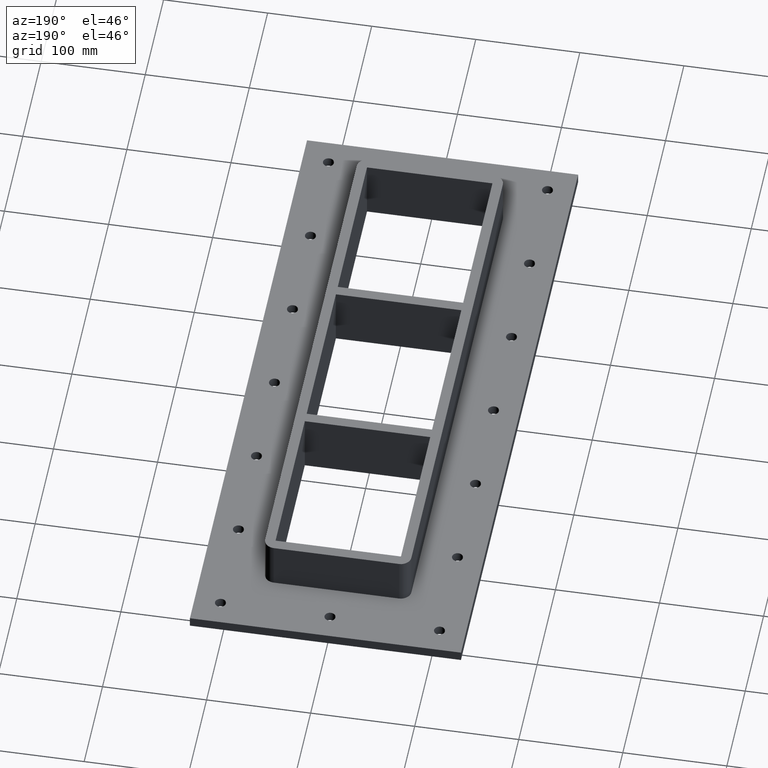
[diagram: clean part render]
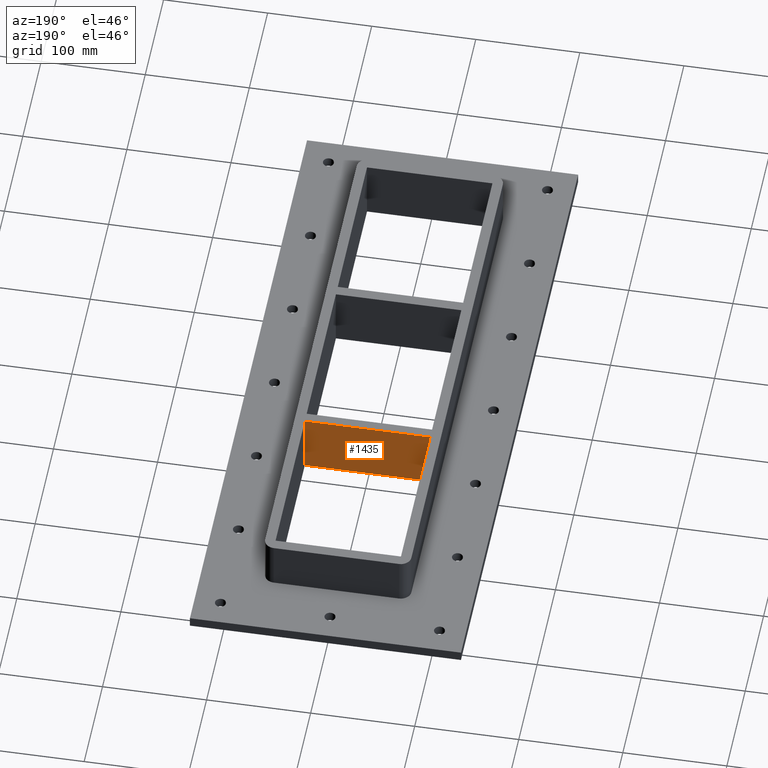
[diagram: same view with one face highlighted and labeled with its STEP entity id]
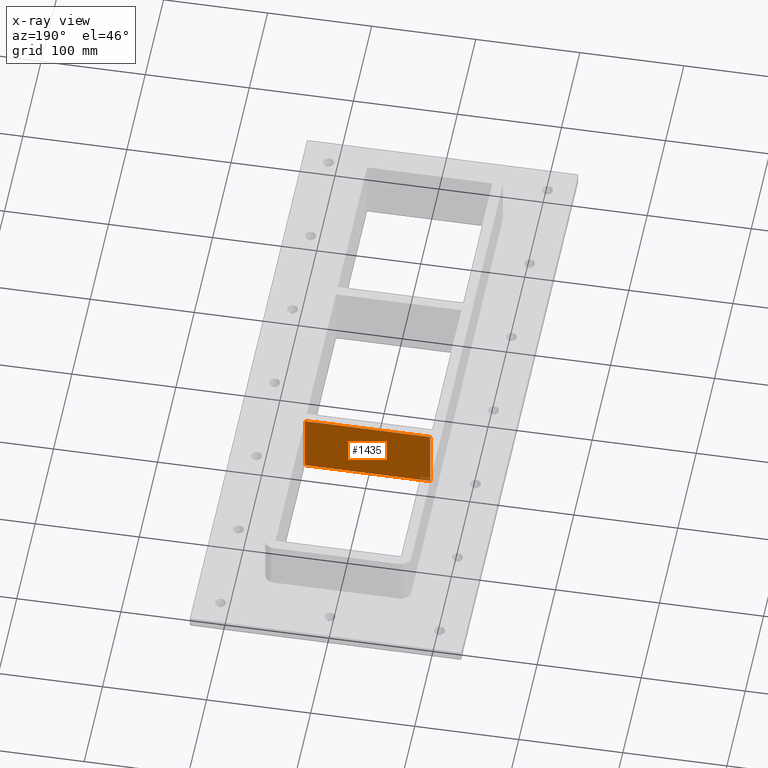
[diagram: x-ray of the same camera — body ghosted, the highlighted face saturated]
A machine part, auxiliary view. The second image highlights one B-rep face of the part: STEP entity #1435.
The next image is the same camera in x-ray: the body ghosted, the highlighted face saturated — about 1% of this face is hidden behind the body in this view.
In plain terms, the highlighted planar face has unit normal (0, -1, 0).
Its self-contained STEP definition (entity closure, byte-faithful):
#1172=CARTESIAN_POINT('',(-60.250000000000128,89.749999999999872,-30.0));
#1173=VERTEX_POINT('',#1172);
#1180=CARTESIAN_POINT('',(60.249999999999915,89.750000000000114,-30.0));
#1181=VERTEX_POINT('',#1180);
#1182=CARTESIAN_POINT('',(-60.250000000000128,89.749999999999872,-30.0));
#1183=DIRECTION('',(1.0,0.0,0.0));
#1184=VECTOR('',#1183,120.50000000000004);
#1185=LINE('',#1182,#1184);
#1186=EDGE_CURVE('',#1173,#1181,#1185,.T.);
#1395=CARTESIAN_POINT('',(-60.250000000000128,89.749999999999872,30.0));
#1396=VERTEX_POINT('',#1395);
#1403=CARTESIAN_POINT('',(-60.250000000000128,89.749999999999872,30.0));
#1404=DIRECTION('',(0.0,0.0,-1.0));
#1405=VECTOR('',#1404,60.0);
#1406=LINE('',#1403,#1405);
#1407=EDGE_CURVE('',#1396,#1173,#1406,.T.);
#1412=CARTESIAN_POINT('',(60.249999999999915,89.750000000000114,30.0));
#1413=DIRECTION('',(0.0,-1.0,0.0));
#1414=DIRECTION('',(-1.0,0.0,0.0));
#1415=AXIS2_PLACEMENT_3D('',#1412,#1413,#1414);
#1416=PLANE('',#1415);
#1417=ORIENTED_EDGE('',*,*,#1186,.F.);
#1418=ORIENTED_EDGE('',*,*,#1407,.F.);
#1419=CARTESIAN_POINT('',(60.249999999999915,89.750000000000114,30.0));
#1420=VERTEX_POINT('',#1419);
#1421=CARTESIAN_POINT('',(60.249999999999915,89.750000000000114,30.0));
#1422=DIRECTION('',(-1.0,0.0,0.0));
#1423=VECTOR('',#1422,120.50000000000004);
#1424=LINE('',#1421,#1423);
#1425=EDGE_CURVE('',#1420,#1396,#1424,.T.);
#1426=ORIENTED_EDGE('',*,*,#1425,.F.);
#1427=CARTESIAN_POINT('',(60.249999999999915,89.750000000000114,30.0));
#1428=DIRECTION('',(0.0,0.0,-1.0));
#1429=VECTOR('',#1428,60.0);
#1430=LINE('',#1427,#1429);
#1431=EDGE_CURVE('',#1420,#1181,#1430,.T.);
#1432=ORIENTED_EDGE('',*,*,#1431,.T.);
#1433=EDGE_LOOP('',(#1417,#1418,#1426,#1432));
#1434=FACE_OUTER_BOUND('',#1433,.T.);
#1435=ADVANCED_FACE('',(#1434),#1416,.F.);